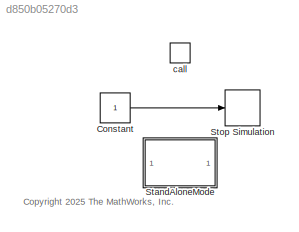
MODEL slx_d850b05270d3
KIND model
CONFIG AbsTol = auto
CONFIG EnableMultiTasking = off
CONFIG FixedStep = auto
CONFIG MaxStep = auto
CONFIG MinStep = auto
CONFIG RelTol = 1e-3
CONFIG SampleTimeConstraint = STIndependent
CONFIG SolverName = FixedStepAuto
CONFIG StartTime = 0.0
CONFIG StopTime = Inf
BLOCK [Constant] Constant
  OutDataTypeStr = boolean
  SampleTime = -1
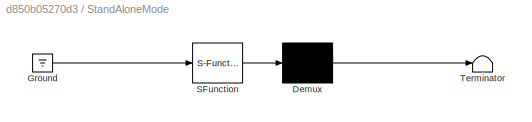
BLOCK [SubSystem] StandAloneMode
  ErrorFcn = Stateflow.Translate.translate
  PermitHierarchicalResolution = ExplicitOnly
  SFBlockType = MATLAB Function
  TreatAsAtomicUnit = on
BLOCK [Demux] StandAloneMode/ Demux 
  Outputs = 1
BLOCK [Ground] StandAloneMode/ Ground 
BLOCK [S-Function] StandAloneMode/ SFunction 
  EnableBusSupport = on
  FunctionName = sf_sfun
  PortCounts = [1 1]
  SFcnIsStateOwnerBlock = off
  SFunctionDeploymentMode = off
  Tag = Stateflow S-Function 2
BLOCK [Terminator] StandAloneMode/ Terminator 
BLOCK [Stop] Stop Simulation
BLOCK [TriggerPort] call
  PortDimensions = 1
  SampleTime = SAMPLING_TIME
  StatesWhenEnabling = held
  TriggerSignalSampleTime = [0.001,0]
  TriggerType = function-call
  VariantControl = Variant
ANNOTATION (root): <copyright redacted>
LINE Constant:1 -> Stop Simulation:1
CHART StandAloneMode states=1 transitions=1
  STATE_LABEL 'eML_blk_kernel()'
  STATE_LABEL "SCRIPT:\nfunction stopSIM\n  %#codegen\n  if coder.target('Rtw')\n  fprintf('The Master Switch of the Parking Meter Interface is switched off.\\n');\n  fprintf('Therefore the application has stopped and it can be closed.\\n');\n  % Include the header file containing the needed function declaration\n  coder.cinclude('stdlib.h');\n  % Stop the main standalone executable properly\n  coder.ceval('exit',int32(0))...<+12ch>"
CHART  states=0 transitions=0
